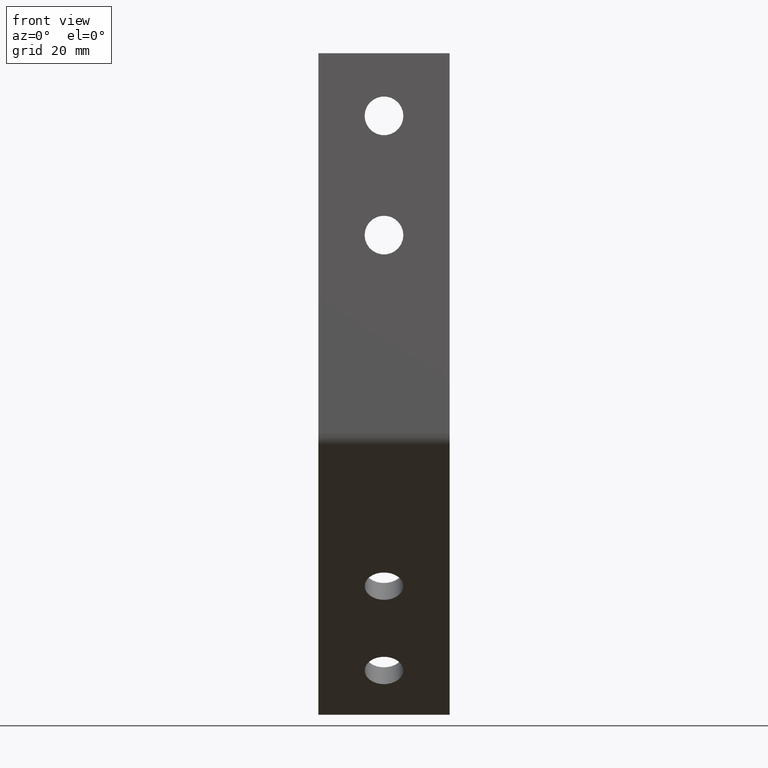
[diagram: clean part render]
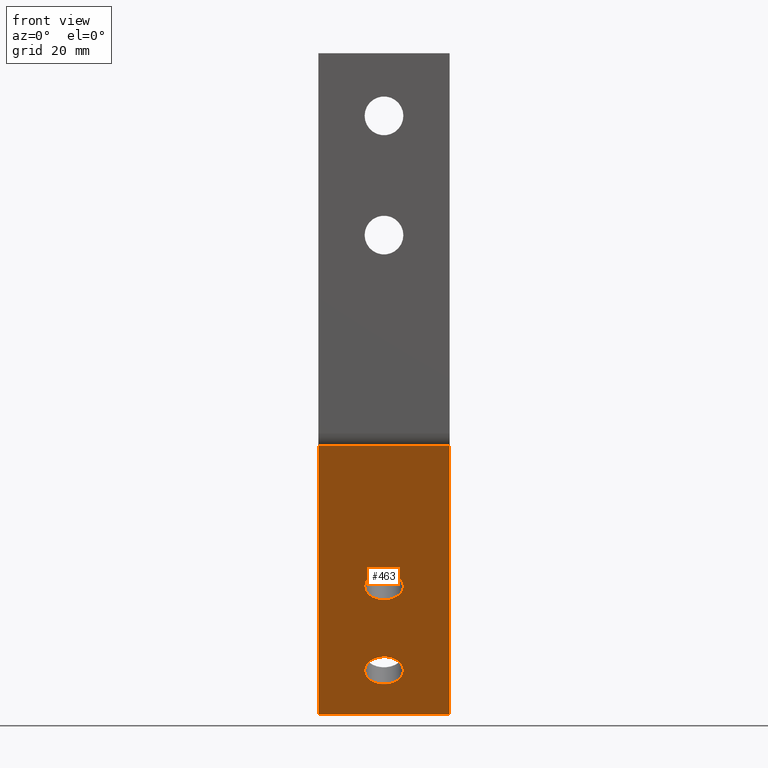
[diagram: same view with one face highlighted and labeled with its STEP entity id]
A machine part, front view. The second image highlights one B-rep face of the part: STEP entity #463.
In plain terms, the highlighted planar face has unit normal (0, -0.7071, -0.7071).
Its self-contained STEP definition (entity closure, byte-faithful):
#26=FACE_BOUND('',#97,.T.);
#27=FACE_BOUND('',#98,.T.);
#37=PLANE('',#517);
#61=FACE_OUTER_BOUND('',#96,.T.);
#96=EDGE_LOOP('',(#403,#404,#405,#406));
#97=EDGE_LOOP('',(#407));
#98=EDGE_LOOP('',(#408));
#107=LINE('',#683,#141);
#118=LINE('',#742,#152);
#133=LINE('',#786,#167);
#134=LINE('',#788,#168);
#141=VECTOR('',#541,63.7573593128808);
#152=VECTOR('',#600,22.);
#167=VECTOR('',#653,22.);
#168=VECTOR('',#656,63.7573593128808);
#183=CIRCLE('',#487,3.25);
#184=CIRCLE('',#489,3.25);
#205=VERTEX_POINT('',#680);
#206=VERTEX_POINT('',#682);
#223=VERTEX_POINT('',#722);
#224=VERTEX_POINT('',#725);
#229=VERTEX_POINT('',#738);
#240=VERTEX_POINT('',#784);
#251=EDGE_CURVE('',#206,#205,#107,.T.);
#271=EDGE_CURVE('',#223,#223,#183,.T.);
#272=EDGE_CURVE('',#224,#224,#184,.T.);
#279=EDGE_CURVE('',#206,#229,#118,.T.);
#301=EDGE_CURVE('',#205,#240,#133,.T.);
#302=EDGE_CURVE('',#229,#240,#134,.T.);
#403=ORIENTED_EDGE('',*,*,#279,.F.);
#404=ORIENTED_EDGE('',*,*,#251,.T.);
#405=ORIENTED_EDGE('',*,*,#301,.T.);
#406=ORIENTED_EDGE('',*,*,#302,.F.);
#407=ORIENTED_EDGE('',*,*,#271,.T.);
#408=ORIENTED_EDGE('',*,*,#272,.T.);
#463=ADVANCED_FACE('',(#61,#26,#27),#37,.T.);
#487=AXIS2_PLACEMENT_3D('',#723,#577,#578);
#489=AXIS2_PLACEMENT_3D('',#726,#581,#582);
#517=AXIS2_PLACEMENT_3D('',#787,#654,#655);
#541=DIRECTION('',(0.,0.707106781186548,-0.707106781186547));
#577=DIRECTION('center_axis',(0.,0.707106781186547,0.707106781186548));
#578=DIRECTION('ref_axis',(1.,0.,0.));
#581=DIRECTION('center_axis',(0.,0.707106781186547,0.707106781186548));
#582=DIRECTION('ref_axis',(1.,0.,0.));
#600=DIRECTION('',(1.,0.,0.));
#653=DIRECTION('',(1.,0.,0.));
#654=DIRECTION('center_axis',(0.,-0.707106781186547,-0.707106781186548));
#655=DIRECTION('ref_axis',(0.,0.707106781186548,-0.707106781186547));
#656=DIRECTION('',(0.,0.707106781186548,-0.707106781186547));
#680=CARTESIAN_POINT('',(0.,45.9619407771256,-110.961940777126));
#682=CARTESIAN_POINT('',(0.,0.87867965644036,-65.8786796564404));
#683=CARTESIAN_POINT('',(0.,0.,-65.));
#722=CARTESIAN_POINT('',(7.75,24.3951839509359,-89.3951839509359));
#723=CARTESIAN_POINT('Origin',(11.,24.3951839509359,-89.3951839509359));
#725=CARTESIAN_POINT('',(7.75,38.5373195746669,-103.537319574667));
#726=CARTESIAN_POINT('Origin',(11.,38.5373195746669,-103.537319574667));
#738=CARTESIAN_POINT('',(22.,0.87867965644036,-65.8786796564404));
#742=CARTESIAN_POINT('',(0.,0.878679656440358,-65.8786796564404));
#784=CARTESIAN_POINT('',(22.,45.9619407771256,-110.961940777126));
#786=CARTESIAN_POINT('',(0.,45.9619407771256,-110.961940777126));
#787=CARTESIAN_POINT('Origin',(0.,0.,-65.));
#788=CARTESIAN_POINT('',(22.,0.,-65.));